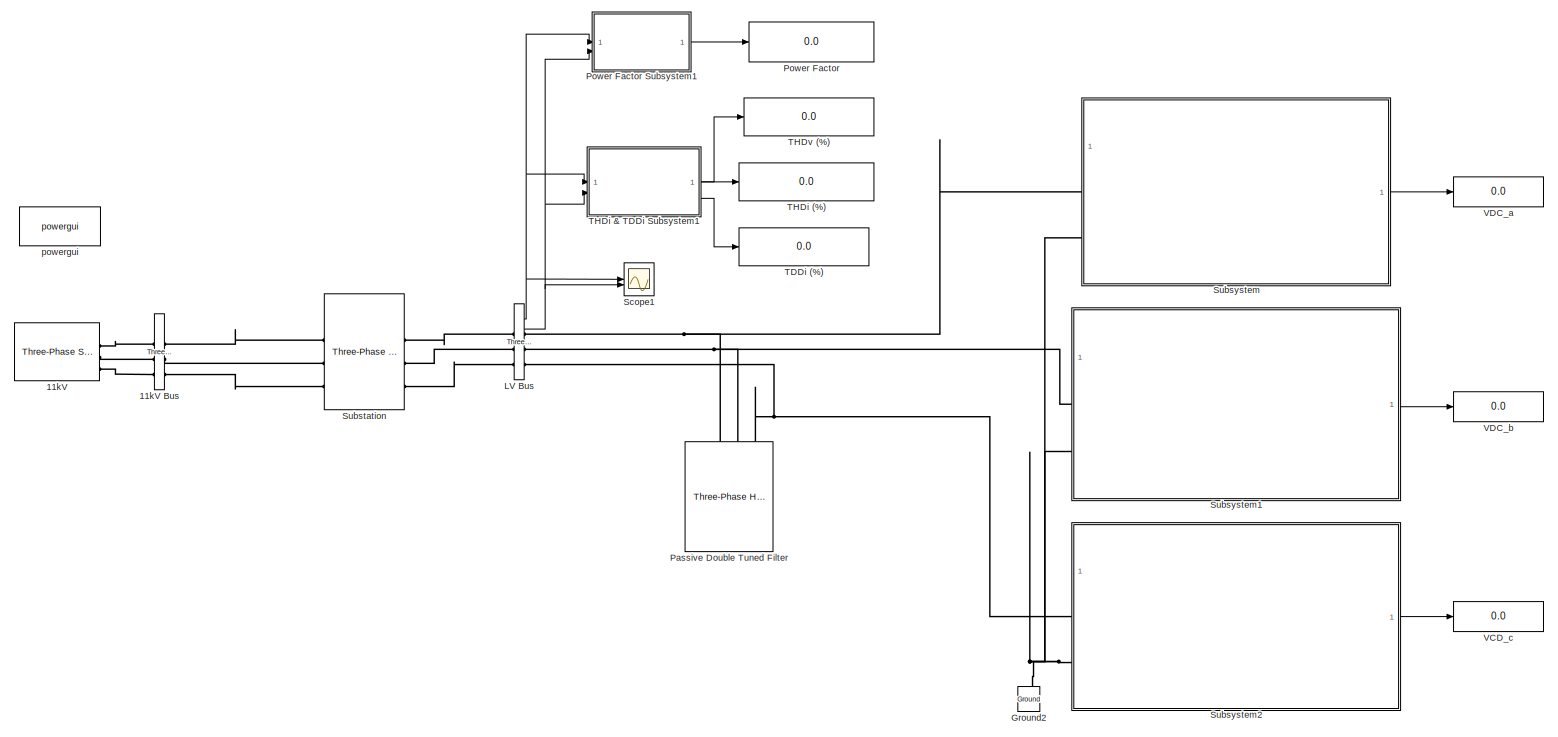
[diagram: root canvas - part 1/1, most of the canvas]
MODEL slx_6e7090bfe4f5
KIND model
CONFIG AbsTol = auto
CONFIG EnableMultiTasking = off
CONFIG FixedStep = auto
CONFIG MaxStep = auto
CONFIG MinStep = auto
CONFIG RelTol = 1e-3
CONFIG SampleTimeConstraint = Unconstrained
CONFIG SolverName = ode23tb
CONFIG StartTime = 0.0
CONFIG StopTime = 1.0
BLOCK [Reference] 11kV  REF=spsThreePhaseSourceLib/Three-Phase Source
  LibrarySourceBlock = sps_lib/Sources/Three-Phase Source
  SourceBlock = spsThreePhaseSourceLib/Three-Phase Source
  SourceType = Three-Phase Source
BLOCK [Reference] 11kV Bus  REF=spsThreePhaseVIMeasurementLib/Three-Phase
V-I Measurement
  LibrarySourceBlock = sps_lib/Sensors and Measurements/Three-Phase\nV-I Measurement
  SourceBlock = spsThreePhaseVIMeasurementLib/Three-Phase\nV-I Measurement
  SourceType = Three-Phase VI Measurement
BLOCK [Reference] Ground2  REF=spsGroundLib/Ground
  LibrarySourceBlock = sps_lib/Utilities/Ground
  NameLocation = right
  SourceBlock = spsGroundLib/Ground
  SourceType = Ground
BLOCK [Reference] LV Bus  REF=spsThreePhaseVIMeasurementLib/Three-Phase
V-I Measurement
  LibrarySourceBlock = sps_lib/Sensors and Measurements/Three-Phase\nV-I Measurement
  SourceBlock = spsThreePhaseVIMeasurementLib/Three-Phase\nV-I Measurement
  SourceType = Three-Phase VI Measurement
BLOCK [Reference] Passive Double Tuned Filter  REF=spsThreePhaseHarmonicFilterLib/Three-Phase
Harmonic Filter
  AttributesFormatString = \n
  LibrarySourceBlock = sps_lib/Passives/Three-Phase\nHarmonic Filter
  SourceBlock = spsThreePhaseHarmonicFilterLib/Three-Phase\nHarmonic Filter
  SourceType = Three-Phase Harmonic Filter
BLOCK [Display] Power Factor
  Decimation = 1
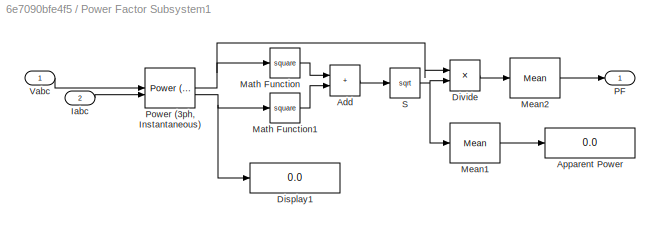
BLOCK [SubSystem] Power Factor Subsystem1
BLOCK [Sum] Power Factor Subsystem1/Add
  IconShape = rectangular
BLOCK [Display] Power Factor Subsystem1/Apparent Power
  Decimation = 1
BLOCK [Display] Power Factor Subsystem1/Display1
  Decimation = 1
BLOCK [Product] Power Factor Subsystem1/Divide
  Inputs = */
BLOCK [Inport] Power Factor Subsystem1/Iabc
  Port = 2
BLOCK [Math] Power Factor Subsystem1/Math Function
  Operator = square
BLOCK [Math] Power Factor Subsystem1/Math Function1
  Operator = square
BLOCK [Reference] Power Factor Subsystem1/Mean1  REF=spsMeanLib/Mean
  SourceBlock = spsMeanLib/Mean
  SourceType = Mean
BLOCK [Reference] Power Factor Subsystem1/Mean2  REF=spsMeanLib/Mean
  SourceBlock = spsMeanLib/Mean
  SourceType = Mean
BLOCK [Outport] Power Factor Subsystem1/PF
BLOCK [Reference] Power Factor Subsystem1/Power (3ph, Instantaneous)  REF=spsPower3phInstantaneousLib/Power
(3ph, Instantaneous)
  SourceBlock = spsPower3phInstantaneousLib/Power\n(3ph, Instantaneous)
  SourceType = Power (3ph, Instantaneous)
BLOCK [Sqrt] Power Factor Subsystem1/S
BLOCK [Inport] Power Factor Subsystem1/Vabc
BLOCK [Scope] Scope1
  Floating = off
  NumInputPorts = 2
  ScopeSpecificationString = Simulink.scopes.TimeScopeBlockCfg('CurrentConfiguration', extmgr.ConfigurationSet(extmgr.Configuration('Core','General UI',true),extmgr.Configuration('Core','Source UI',true),extmgr.Configuration('Sources','WiredSimulink',true,'DataLogging',true,'DataLoggingSaveFormat','StructureWithTime','DataLoggingVariableName','ScopeData1'),extmgr.Configuration('Visuals','Time Domain',true,'SerializedDisplays'...<+2192ch>
BLOCK [Reference] Substation  REF=spsThreePhaseTransformerTwoWindingsLib/Three-Phase
Transformer
(Two Windings)
  LibrarySourceBlock = sps_lib/Power Grid Elements/Three-Phase\nTransformer\n(Two Windings)
  SourceBlock = spsThreePhaseTransformerTwoWindingsLib/Three-Phase\nTransformer\n(Two Windings)
  SourceType = Three-Phase Transformer (Two Windings)
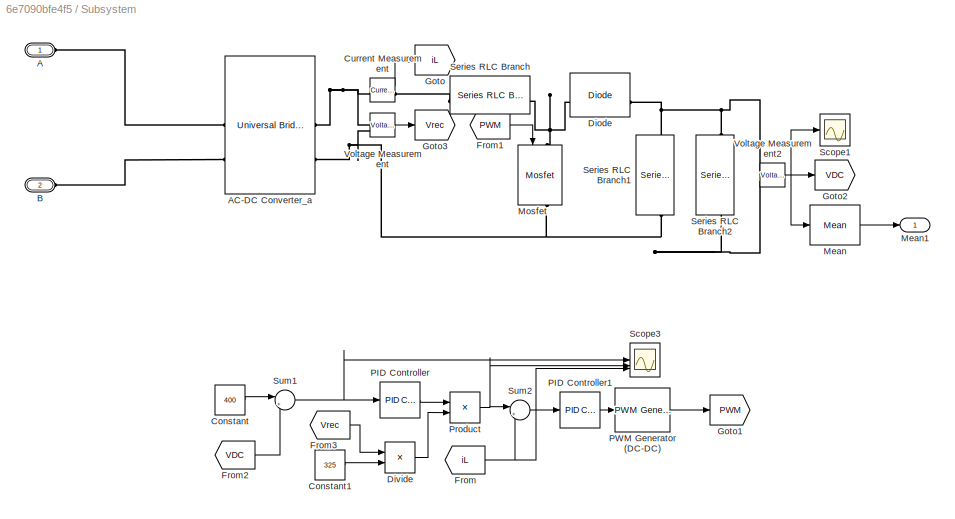
BLOCK [SubSystem] Subsystem
BLOCK [PMIOPort] Subsystem/A
  Side = Left
BLOCK [Reference] Subsystem/AC-DC Converter_a  REF=spsUniversalBridgeLib/Universal Bridge
  SourceBlock = spsUniversalBridgeLib/Universal Bridge
  SourceType = Universal Bridge
BLOCK [PMIOPort] Subsystem/B
  Port = 2
  Side = Left
BLOCK [Constant] Subsystem/Constant
  Value = 400
BLOCK [Constant] Subsystem/Constant1
  Value = 325
BLOCK [Reference] Subsystem/Current Measurement  REF=spsCurrentMeasurementLib/Current Measurement
  SourceBlock = spsCurrentMeasurementLib/Current Measurement
  SourceType = Current Measurement
  UserDataPersistent = on
BLOCK [Reference] Subsystem/Diode  REF=spsDiodeLib/Diode
  SourceBlock = spsDiodeLib/Diode
  SourceType = Diode
BLOCK [Product] Subsystem/Divide
  Inputs = */
BLOCK [From] Subsystem/From
  GotoTag = iL
BLOCK [From] Subsystem/From1
  GotoTag = PWM
BLOCK [From] Subsystem/From2
  GotoTag = VDC
BLOCK [From] Subsystem/From3
  GotoTag = Vrec
BLOCK [Goto] Subsystem/Goto
  GotoTag = iL
BLOCK [Goto] Subsystem/Goto1
  GotoTag = PWM
BLOCK [Goto] Subsystem/Goto2
  GotoTag = VDC
BLOCK [Goto] Subsystem/Goto3
  GotoTag = Vrec
BLOCK [Reference] Subsystem/Mean  REF=spsMeanLib/Mean
  SourceBlock = spsMeanLib/Mean
  SourceType = Mean
BLOCK [Outport] Subsystem/Mean1
BLOCK [Reference] Subsystem/Mosfet  REF=spsMosfetLib/Mosfet
  NameLocation = left
  SourceBlock = spsMosfetLib/Mosfet
  SourceType = Mosfet
BLOCK [Reference] Subsystem/PID Controller  REF=slpidlib/PID Controller
  SourceBlock = slpidlib/PID Controller
  SourceType = PID 1dof
BLOCK [Reference] Subsystem/PID Controller1  REF=slpidlib/PID Controller
  SourceBlock = slpidlib/PID Controller
  SourceType = PID 1dof
BLOCK [Reference] Subsystem/PWM Generator (DC-DC)  REF=spsPWMGeneratorDCDCLib/PWM Generator
(DC-DC)
  SourceBlock = spsPWMGeneratorDCDCLib/PWM Generator\n(DC-DC)
  SourceType = PWM Generator (DC-DC)
BLOCK [Product] Subsystem/Product
BLOCK [Scope] Subsystem/Scope1
  Floating = off
  NumInputPorts = 1
  ScopeSpecificationString = Simulink.scopes.TimeScopeBlockCfg('CurrentConfiguration', extmgr.ConfigurationSet(extmgr.Configuration('Core','General UI',true),extmgr.Configuration('Core','Source UI',true),extmgr.Configuration('Sources','WiredSimulink',true,'DataLoggingVariableName','ScopeData1'),extmgr.Configuration('Visuals','Time Domain',true,'SerializedDisplays',{struct('MinYLimReal','-118.78055','MaxYLimReal','1069.02497',...<+1444ch>  <repeated x3 — deduplicated; at blocks: Scope1, Scope 2, Scope 3>
BLOCK [Scope] Subsystem/Scope3
  Floating = off
  NumInputPorts = 3
  ScopeSpecificationString = Simulink.scopes.TimeScopeBlockCfg('CurrentConfiguration', extmgr.ConfigurationSet(extmgr.Configuration('Core','General UI',true),extmgr.Configuration('Core','Source UI',true),extmgr.Configuration('Sources','WiredSimulink',true,'DataLoggingVariableName','ScopeData3'),extmgr.Configuration('Visuals','Time Domain',true,'SerializedDisplays',{struct('MinYLimReal','-209.39497','MaxYLimReal','467.71055','...<+2793ch>
BLOCK [Reference] Subsystem/Series RLC Branch  REF=spsSeriesRLCBranchLib/Series RLC Branch
  SourceBlock = spsSeriesRLCBranchLib/Series RLC Branch
  SourceType = Series RLC Branch
BLOCK [Reference] Subsystem/Series RLC Branch1  REF=spsSeriesRLCBranchLib/Series RLC Branch
  NameLocation = left
  SourceBlock = spsSeriesRLCBranchLib/Series RLC Branch
  SourceType = Series RLC Branch
BLOCK [Reference] Subsystem/Series RLC Branch2  REF=spsSeriesRLCBranchLib/Series RLC Branch
  NameLocation = left
  SourceBlock = spsSeriesRLCBranchLib/Series RLC Branch
  SourceType = Series RLC Branch
BLOCK [Sum] Subsystem/Sum1
  Inputs = |+-
BLOCK [Sum] Subsystem/Sum2
  Inputs = |+-
BLOCK [Reference] Subsystem/Voltage Measurement  REF=spsVoltageMeasurementLib/Voltage Measurement
  SourceBlock = spsVoltageMeasurementLib/Voltage Measurement
  SourceType = Voltage Measurement
  UserDataPersistent = on
BLOCK [Reference] Subsystem/Voltage Measurement2  REF=spsVoltageMeasurementLib/Voltage Measurement
  SourceBlock = spsVoltageMeasurementLib/Voltage Measurement
  SourceType = Voltage Measurement
  UserDataPersistent = on
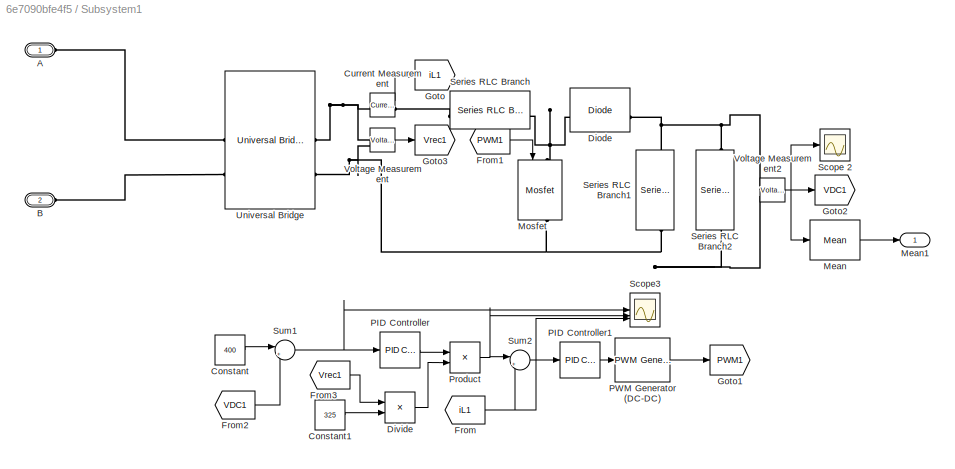
BLOCK [SubSystem] Subsystem1
BLOCK [PMIOPort] Subsystem1/A
  Side = Left
BLOCK [PMIOPort] Subsystem1/B
  Port = 2
  Side = Left
BLOCK [Constant] Subsystem1/Constant
  Value = 400
BLOCK [Constant] Subsystem1/Constant1
  Value = 325
BLOCK [Reference] Subsystem1/Current Measurement  REF=spsCurrentMeasurementLib/Current Measurement
  SourceBlock = spsCurrentMeasurementLib/Current Measurement
  SourceType = Current Measurement
  UserDataPersistent = on
BLOCK [Reference] Subsystem1/Diode  REF=spsDiodeLib/Diode
  SourceBlock = spsDiodeLib/Diode
  SourceType = Diode
BLOCK [Product] Subsystem1/Divide
  Inputs = */
BLOCK [From] Subsystem1/From
  GotoTag = iL1
BLOCK [From] Subsystem1/From1
  GotoTag = PWM1
BLOCK [From] Subsystem1/From2
  GotoTag = VDC1
BLOCK [From] Subsystem1/From3
  GotoTag = Vrec1
BLOCK [Goto] Subsystem1/Goto
  GotoTag = iL1
BLOCK [Goto] Subsystem1/Goto1
  GotoTag = PWM1
BLOCK [Goto] Subsystem1/Goto2
  GotoTag = VDC1
BLOCK [Goto] Subsystem1/Goto3
  GotoTag = Vrec1
BLOCK [Reference] Subsystem1/Mean  REF=spsMeanLib/Mean
  SourceBlock = spsMeanLib/Mean
  SourceType = Mean
BLOCK [Outport] Subsystem1/Mean1
BLOCK [Reference] Subsystem1/Mosfet  REF=spsMosfetLib/Mosfet
  NameLocation = left
  SourceBlock = spsMosfetLib/Mosfet
  SourceType = Mosfet
BLOCK [Reference] Subsystem1/PID Controller  REF=slpidlib/PID Controller
  SourceBlock = slpidlib/PID Controller
  SourceType = PID 1dof
BLOCK [Reference] Subsystem1/PID Controller1  REF=slpidlib/PID Controller
  SourceBlock = slpidlib/PID Controller
  SourceType = PID 1dof
BLOCK [Reference] Subsystem1/PWM Generator (DC-DC)  REF=spsPWMGeneratorDCDCLib/PWM Generator
(DC-DC)
  SourceBlock = spsPWMGeneratorDCDCLib/PWM Generator\n(DC-DC)
  SourceType = PWM Generator (DC-DC)
BLOCK [Product] Subsystem1/Product
BLOCK [Scope] Subsystem1/Scope 2
  Floating = off
  NumInputPorts = 1
BLOCK [Scope] Subsystem1/Scope3
  Floating = off
  NumInputPorts = 3
  ScopeSpecificationString = Simulink.scopes.TimeScopeBlockCfg('CurrentConfiguration', extmgr.ConfigurationSet(extmgr.Configuration('Core','General UI',true),extmgr.Configuration('Core','Source UI',true),extmgr.Configuration('Sources','WiredSimulink',true,'DataLoggingVariableName','ScopeData3'),extmgr.Configuration('Visuals','Time Domain',true,'SerializedDisplays',{struct('MinYLimReal','-209.39497','MaxYLimReal','467.71055','...<+2767ch>
BLOCK [Reference] Subsystem1/Series RLC Branch  REF=spsSeriesRLCBranchLib/Series RLC Branch
  SourceBlock = spsSeriesRLCBranchLib/Series RLC Branch
  SourceType = Series RLC Branch
BLOCK [Reference] Subsystem1/Series RLC Branch1  REF=spsSeriesRLCBranchLib/Series RLC Branch
  NameLocation = left
  SourceBlock = spsSeriesRLCBranchLib/Series RLC Branch
  SourceType = Series RLC Branch
BLOCK [Reference] Subsystem1/Series RLC Branch2  REF=spsSeriesRLCBranchLib/Series RLC Branch
  NameLocation = left
  SourceBlock = spsSeriesRLCBranchLib/Series RLC Branch
  SourceType = Series RLC Branch
BLOCK [Sum] Subsystem1/Sum1
  Inputs = |+-
BLOCK [Sum] Subsystem1/Sum2
  Inputs = |+-
BLOCK [Reference] Subsystem1/Universal Bridge  REF=spsUniversalBridgeLib/Universal Bridge
  SourceBlock = spsUniversalBridgeLib/Universal Bridge
  SourceType = Universal Bridge
BLOCK [Reference] Subsystem1/Voltage Measurement  REF=spsVoltageMeasurementLib/Voltage Measurement
  SourceBlock = spsVoltageMeasurementLib/Voltage Measurement
  SourceType = Voltage Measurement
  UserDataPersistent = on
BLOCK [Reference] Subsystem1/Voltage Measurement2  REF=spsVoltageMeasurementLib/Voltage Measurement
  SourceBlock = spsVoltageMeasurementLib/Voltage Measurement
  SourceType = Voltage Measurement
  UserDataPersistent = on
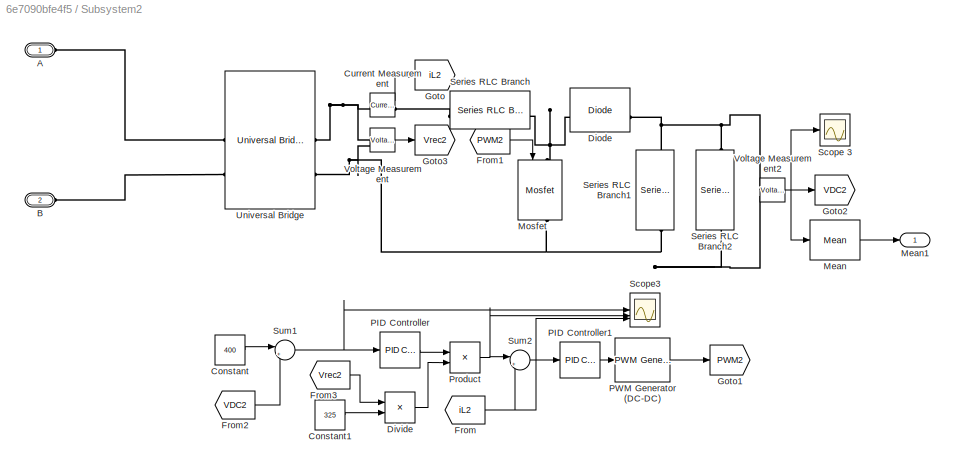
BLOCK [SubSystem] Subsystem2
BLOCK [PMIOPort] Subsystem2/A
  Side = Left
BLOCK [PMIOPort] Subsystem2/B
  Port = 2
  Side = Left
BLOCK [Constant] Subsystem2/Constant
  Value = 400
BLOCK [Constant] Subsystem2/Constant1
  Value = 325
BLOCK [Reference] Subsystem2/Current Measurement  REF=spsCurrentMeasurementLib/Current Measurement
  SourceBlock = spsCurrentMeasurementLib/Current Measurement
  SourceType = Current Measurement
  UserDataPersistent = on
BLOCK [Reference] Subsystem2/Diode  REF=spsDiodeLib/Diode
  SourceBlock = spsDiodeLib/Diode
  SourceType = Diode
BLOCK [Product] Subsystem2/Divide
  Inputs = */
BLOCK [From] Subsystem2/From
  GotoTag = iL2
BLOCK [From] Subsystem2/From1
  GotoTag = PWM2
BLOCK [From] Subsystem2/From2
  GotoTag = VDC2
BLOCK [From] Subsystem2/From3
  GotoTag = Vrec2
BLOCK [Goto] Subsystem2/Goto
  GotoTag = iL2
BLOCK [Goto] Subsystem2/Goto1
  GotoTag = PWM2
BLOCK [Goto] Subsystem2/Goto2
  GotoTag = VDC2
BLOCK [Goto] Subsystem2/Goto3
  GotoTag = Vrec2
BLOCK [Reference] Subsystem2/Mean  REF=spsMeanLib/Mean
  SourceBlock = spsMeanLib/Mean
  SourceType = Mean
BLOCK [Outport] Subsystem2/Mean1
BLOCK [Reference] Subsystem2/Mosfet  REF=spsMosfetLib/Mosfet
  NameLocation = left
  SourceBlock = spsMosfetLib/Mosfet
  SourceType = Mosfet
BLOCK [Reference] Subsystem2/PID Controller  REF=slpidlib/PID Controller
  SourceBlock = slpidlib/PID Controller
  SourceType = PID 1dof
BLOCK [Reference] Subsystem2/PID Controller1  REF=slpidlib/PID Controller
  SourceBlock = slpidlib/PID Controller
  SourceType = PID 1dof
BLOCK [Reference] Subsystem2/PWM Generator (DC-DC)  REF=spsPWMGeneratorDCDCLib/PWM Generator
(DC-DC)
  SourceBlock = spsPWMGeneratorDCDCLib/PWM Generator\n(DC-DC)
  SourceType = PWM Generator (DC-DC)
BLOCK [Product] Subsystem2/Product
BLOCK [Scope] Subsystem2/Scope 3 
  Floating = off
  NumInputPorts = 1
BLOCK [Scope] Subsystem2/Scope3
  Floating = off
  NumInputPorts = 3
  ScopeSpecificationString = Simulink.scopes.TimeScopeBlockCfg('CurrentConfiguration', extmgr.ConfigurationSet(extmgr.Configuration('Core','General UI',true),extmgr.Configuration('Core','Source UI',true),extmgr.Configuration('Sources','WiredSimulink',true,'DataLoggingVariableName','ScopeData3'),extmgr.Configuration('Visuals','Time Domain',true,'SerializedDisplays',{struct('MinYLimReal','-209.39497','MaxYLimReal','467.71055','...<+2767ch>
BLOCK [Reference] Subsystem2/Series RLC Branch  REF=spsSeriesRLCBranchLib/Series RLC Branch
  SourceBlock = spsSeriesRLCBranchLib/Series RLC Branch
  SourceType = Series RLC Branch
BLOCK [Reference] Subsystem2/Series RLC Branch1  REF=spsSeriesRLCBranchLib/Series RLC Branch
  NameLocation = left
  SourceBlock = spsSeriesRLCBranchLib/Series RLC Branch
  SourceType = Series RLC Branch
BLOCK [Reference] Subsystem2/Series RLC Branch2  REF=spsSeriesRLCBranchLib/Series RLC Branch
  NameLocation = left
  SourceBlock = spsSeriesRLCBranchLib/Series RLC Branch
  SourceType = Series RLC Branch
BLOCK [Sum] Subsystem2/Sum1
  Inputs = |+-
BLOCK [Sum] Subsystem2/Sum2
  Inputs = |+-
BLOCK [Reference] Subsystem2/Universal Bridge  REF=spsUniversalBridgeLib/Universal Bridge
  SourceBlock = spsUniversalBridgeLib/Universal Bridge
  SourceType = Universal Bridge
BLOCK [Reference] Subsystem2/Voltage Measurement  REF=spsVoltageMeasurementLib/Voltage Measurement
  SourceBlock = spsVoltageMeasurementLib/Voltage Measurement
  SourceType = Voltage Measurement
  UserDataPersistent = on
BLOCK [Reference] Subsystem2/Voltage Measurement2  REF=spsVoltageMeasurementLib/Voltage Measurement
  SourceBlock = spsVoltageMeasurementLib/Voltage Measurement
  SourceType = Voltage Measurement
  UserDataPersistent = on
BLOCK [Display] TDDi (%)
  Decimation = 1
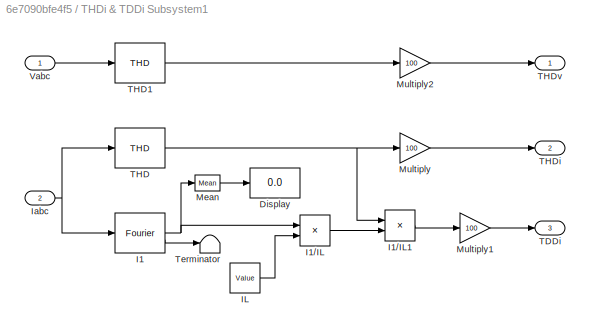
BLOCK [SubSystem] THDi & TDDi Subsystem1
BLOCK [Display] THDi & TDDi Subsystem1/Display
  Decimation = 1
BLOCK [Reference] THDi & TDDi Subsystem1/I1  REF=spsFourierLib/Fourier
  SourceBlock = spsFourierLib/Fourier
  SourceType = Fourier
BLOCK [Product] THDi & TDDi Subsystem1/I1//IL
  Inputs = */
BLOCK [Product] THDi & TDDi Subsystem1/I1//IL1
  Inputs = **
BLOCK [Constant] THDi & TDDi Subsystem1/IL
  Value = Value
BLOCK [Inport] THDi & TDDi Subsystem1/Iabc
  Port = 2
BLOCK [Reference] THDi & TDDi Subsystem1/Mean  REF=spsMeanLib/Mean
  SourceBlock = spsMeanLib/Mean
  SourceType = Mean
BLOCK [Gain] THDi & TDDi Subsystem1/Multiply
  Gain = 100
BLOCK [Gain] THDi & TDDi Subsystem1/Multiply1
  Gain = 100
BLOCK [Gain] THDi & TDDi Subsystem1/Multiply2
  Gain = 100
BLOCK [Outport] THDi & TDDi Subsystem1/TDDi
  Port = 3
BLOCK [Reference] THDi & TDDi Subsystem1/THD  REF=spsTHDLib/THD
  SourceBlock = spsTHDLib/THD
  SourceType = THD
BLOCK [Reference] THDi & TDDi Subsystem1/THD1  REF=spsTHDLib/THD
  SourceBlock = spsTHDLib/THD
  SourceType = THD
BLOCK [Outport] THDi & TDDi Subsystem1/THDi
  Port = 2
BLOCK [Outport] THDi & TDDi Subsystem1/THDv
BLOCK [Terminator] THDi & TDDi Subsystem1/Terminator
BLOCK [Inport] THDi & TDDi Subsystem1/Vabc
BLOCK [Display] THDi (%)
  Decimation = 1
BLOCK [Display] THDv (%)
  Decimation = 1
BLOCK [Display] VCD_c
  Decimation = 1
BLOCK [Display] VDC_a
  Decimation = 1
BLOCK [Display] VDC_b
  Decimation = 1
BLOCK [Reference] powergui  REF=spspowerguiLib/powergui
  Priority = 1
  SourceBlock = spspowerguiLib/powergui
  SourceType = PSB option menu block
NET LV Bus:1 -> Power Factor Subsystem1:1, Scope1:1, THDi & TDDi Subsystem1:1
NET LV Bus:2 -> Power Factor Subsystem1:2, Scope1:2, THDi & TDDi Subsystem1:2
LINE Power Factor Subsystem1/Add:1 -> Power Factor Subsystem1/S:1
LINE Power Factor Subsystem1/Divide:1 -> Power Factor Subsystem1/Mean2:1
LINE Power Factor Subsystem1/Iabc:1 -> Power Factor Subsystem1/Power (3ph, Instantaneous):2
LINE Power Factor Subsystem1/Math Function1:1 -> Power Factor Subsystem1/Add:2
LINE Power Factor Subsystem1/Math Function:1 -> Power Factor Subsystem1/Add:1
LINE Power Factor Subsystem1/Mean1:1 -> Power Factor Subsystem1/Apparent Power:1
LINE Power Factor Subsystem1/Mean2:1 -> Power Factor Subsystem1/PF:1
NET Power Factor Subsystem1/Power (3ph, Instantaneous):1 -> Power Factor Subsystem1/Divide:1, Power Factor Subsystem1/Math Function:1
NET Power Factor Subsystem1/Power (3ph, Instantaneous):2 -> Power Factor Subsystem1/Display1:1, Power Factor Subsystem1/Math Function1:1
NET Power Factor Subsystem1/S:1 -> Power Factor Subsystem1/Divide:2, Power Factor Subsystem1/Mean1:1
LINE Power Factor Subsystem1/Vabc:1 -> Power Factor Subsystem1/Power (3ph, Instantaneous):1
LINE Power Factor Subsystem1:1 -> Power Factor:1
LINE Subsystem/Constant1:1 -> Subsystem/Divide:2
LINE Subsystem/Constant:1 -> Subsystem/Sum1:1
LINE Subsystem/Current Measurement:1 -> Subsystem/Goto:1
LINE Subsystem/Divide:1 -> Subsystem/Product:2
LINE Subsystem/From1:1 -> Subsystem/Mosfet:1
LINE Subsystem/From2:1 -> Subsystem/Sum1:2
LINE Subsystem/From3:1 -> Subsystem/Divide:1
NET Subsystem/From:1 -> Subsystem/Scope3:3, Subsystem/Sum2:2
LINE Subsystem/Mean:1 -> Subsystem/Mean1:1
LINE Subsystem/PID Controller1:1 -> Subsystem/PWM Generator (DC-DC):1
LINE Subsystem/PID Controller:1 -> Subsystem/Product:1
LINE Subsystem/PWM Generator (DC-DC):1 -> Subsystem/Goto1:1
NET Subsystem/Product:1 -> Subsystem/Scope3:2, Subsystem/Sum2:1
NET Subsystem/Sum1:1 -> Subsystem/PID Controller:1, Subsystem/Scope3:1
LINE Subsystem/Sum2:1 -> Subsystem/PID Controller1:1
NET Subsystem/Voltage Measurement2:1 -> Subsystem/Goto2:1, Subsystem/Mean:1, Subsystem/Scope1:1
LINE Subsystem/Voltage Measurement:1 -> Subsystem/Goto3:1
LINE Subsystem1/Constant1:1 -> Subsystem1/Divide:2
LINE Subsystem1/Constant:1 -> Subsystem1/Sum1:1
LINE Subsystem1/Current Measurement:1 -> Subsystem1/Goto:1
LINE Subsystem1/Divide:1 -> Subsystem1/Product:2
LINE Subsystem1/From1:1 -> Subsystem1/Mosfet:1
LINE Subsystem1/From2:1 -> Subsystem1/Sum1:2
LINE Subsystem1/From3:1 -> Subsystem1/Divide:1
NET Subsystem1/From:1 -> Subsystem1/Scope3:3, Subsystem1/Sum2:2
LINE Subsystem1/Mean:1 -> Subsystem1/Mean1:1
LINE Subsystem1/PID Controller1:1 -> Subsystem1/PWM Generator (DC-DC):1
LINE Subsystem1/PID Controller:1 -> Subsystem1/Product:1
LINE Subsystem1/PWM Generator (DC-DC):1 -> Subsystem1/Goto1:1
NET Subsystem1/Product:1 -> Subsystem1/Scope3:2, Subsystem1/Sum2:1
NET Subsystem1/Sum1:1 -> Subsystem1/PID Controller:1, Subsystem1/Scope3:1
LINE Subsystem1/Sum2:1 -> Subsystem1/PID Controller1:1
NET Subsystem1/Voltage Measurement2:1 -> Subsystem1/Goto2:1, Subsystem1/Mean:1, Subsystem1/Scope 2:1
LINE Subsystem1/Voltage Measurement:1 -> Subsystem1/Goto3:1
LINE Subsystem1:1 -> VDC_b:1
LINE Subsystem2/Constant1:1 -> Subsystem2/Divide:2
LINE Subsystem2/Constant:1 -> Subsystem2/Sum1:1
LINE Subsystem2/Current Measurement:1 -> Subsystem2/Goto:1
LINE Subsystem2/Divide:1 -> Subsystem2/Product:2
LINE Subsystem2/From1:1 -> Subsystem2/Mosfet:1
LINE Subsystem2/From2:1 -> Subsystem2/Sum1:2
LINE Subsystem2/From3:1 -> Subsystem2/Divide:1
NET Subsystem2/From:1 -> Subsystem2/Scope3:3, Subsystem2/Sum2:2
LINE Subsystem2/Mean:1 -> Subsystem2/Mean1:1
LINE Subsystem2/PID Controller1:1 -> Subsystem2/PWM Generator (DC-DC):1
LINE Subsystem2/PID Controller:1 -> Subsystem2/Product:1
LINE Subsystem2/PWM Generator (DC-DC):1 -> Subsystem2/Goto1:1
NET Subsystem2/Product:1 -> Subsystem2/Scope3:2, Subsystem2/Sum2:1
NET Subsystem2/Sum1:1 -> Subsystem2/PID Controller:1, Subsystem2/Scope3:1
LINE Subsystem2/Sum2:1 -> Subsystem2/PID Controller1:1
NET Subsystem2/Voltage Measurement2:1 -> Subsystem2/Goto2:1, Subsystem2/Mean:1, Subsystem2/Scope 3 :1
LINE Subsystem2/Voltage Measurement:1 -> Subsystem2/Goto3:1
LINE Subsystem2:1 -> VCD_c:1
LINE Subsystem:1 -> VDC_a:1
LINE THDi & TDDi Subsystem1/I1//IL1:1 -> THDi & TDDi Subsystem1/Multiply1:1
LINE THDi & TDDi Subsystem1/I1//IL:1 -> THDi & TDDi Subsystem1/I1//IL1:2
NET THDi & TDDi Subsystem1/I1:1 -> THDi & TDDi Subsystem1/I1//IL:1, THDi & TDDi Subsystem1/Mean:1
LINE THDi & TDDi Subsystem1/I1:2 -> THDi & TDDi Subsystem1/Terminator:1
LINE THDi & TDDi Subsystem1/IL:1 -> THDi & TDDi Subsystem1/I1//IL:2
NET THDi & TDDi Subsystem1/Iabc:1 -> THDi & TDDi Subsystem1/I1:1, THDi & TDDi Subsystem1/THD:1
LINE THDi & TDDi Subsystem1/Mean:1 -> THDi & TDDi Subsystem1/Display:1
LINE THDi & TDDi Subsystem1/Multiply1:1 -> THDi & TDDi Subsystem1/TDDi:1
LINE THDi & TDDi Subsystem1/Multiply2:1 -> THDi & TDDi Subsystem1/THDv:1
LINE THDi & TDDi Subsystem1/Multiply:1 -> THDi & TDDi Subsystem1/THDi:1
LINE THDi & TDDi Subsystem1/THD1:1 -> THDi & TDDi Subsystem1/Multiply2:1
NET THDi & TDDi Subsystem1/THD:1 -> THDi & TDDi Subsystem1/I1//IL1:1, THDi & TDDi Subsystem1/Multiply:1
LINE THDi & TDDi Subsystem1/Vabc:1 -> THDi & TDDi Subsystem1/THD1:1
LINE THDi & TDDi Subsystem1:1 -> THDv (%):1
LINE THDi & TDDi Subsystem1:2 -> THDi (%):1
LINE THDi & TDDi Subsystem1:3 -> TDDi (%):1
PLINE 11kV Bus:LConn1 -- 11kV:RConn1
PLINE 11kV Bus:LConn2 -- 11kV:RConn2
PLINE 11kV Bus:LConn3 -- 11kV:RConn3
PLINE 11kV Bus:RConn1 -- Substation:LConn1
PLINE 11kV Bus:RConn2 -- Substation:LConn2
PLINE 11kV Bus:RConn3 -- Substation:LConn3
PNET net1: Ground2:LConn1 -- Subsystem1:LConn2 -- Subsystem2:LConn2 -- Subsystem:LConn2
PLINE LV Bus:LConn1 -- Substation:RConn1
PLINE LV Bus:LConn2 -- Substation:RConn2
PLINE LV Bus:LConn3 -- Substation:RConn3
PNET net2: LV Bus:RConn1 -- Passive Double Tuned Filter:LConn1 -- Subsystem:LConn1
PNET net3: LV Bus:RConn2 -- Passive Double Tuned Filter:LConn2 -- Subsystem1:LConn1
PNET net4: LV Bus:RConn3 -- Passive Double Tuned Filter:LConn3 -- Subsystem2:LConn1
PLINE Subsystem/A:RConn1 -- Subsystem/AC-DC Converter_a:LConn1
PLINE Subsystem/AC-DC Converter_a:LConn2 -- Subsystem/B:RConn1
PNET net5: Subsystem/AC-DC Converter_a:RConn1 -- Subsystem/Current Measurement:LConn1 -- Subsystem/Voltage Measurement:LConn1
PNET net6: Subsystem/AC-DC Converter_a:RConn2 -- Subsystem/Mosfet:RConn1 -- Subsystem/Series RLC Branch1:RConn1 -- Subsystem/Series RLC Branch2:RConn1 -- Subsystem/Voltage Measurement2:LConn2 -- Subsystem/Voltage Measurement:LConn2
PLINE Subsystem/Current Measurement:RConn1 -- Subsystem/Series RLC Branch:LConn1
PNET net7: Subsystem/Diode:LConn1 -- Subsystem/Mosfet:LConn1 -- Subsystem/Series RLC Branch:RConn1
PNET net8: Subsystem/Diode:RConn1 -- Subsystem/Series RLC Branch1:LConn1 -- Subsystem/Series RLC Branch2:LConn1 -- Subsystem/Voltage Measurement2:LConn1
PLINE Subsystem1/A:RConn1 -- Subsystem1/Universal Bridge:LConn1
PLINE Subsystem1/B:RConn1 -- Subsystem1/Universal Bridge:LConn2
PNET net9: Subsystem1/Current Measurement:LConn1 -- Subsystem1/Universal Bridge:RConn1 -- Subsystem1/Voltage Measurement:LConn1
PLINE Subsystem1/Current Measurement:RConn1 -- Subsystem1/Series RLC Branch:LConn1
PNET net10: Subsystem1/Diode:LConn1 -- Subsystem1/Mosfet:LConn1 -- Subsystem1/Series RLC Branch:RConn1
PNET net11: Subsystem1/Diode:RConn1 -- Subsystem1/Series RLC Branch1:LConn1 -- Subsystem1/Series RLC Branch2:LConn1 -- Subsystem1/Voltage Measurement2:LConn1
PNET net12: Subsystem1/Mosfet:RConn1 -- Subsystem1/Series RLC Branch1:RConn1 -- Subsystem1/Series RLC Branch2:RConn1 -- Subsystem1/Universal Bridge:RConn2 -- Subsystem1/Voltage Measurement2:LConn2 -- Subsystem1/Voltage Measurement:LConn2
PLINE Subsystem2/A:RConn1 -- Subsystem2/Universal Bridge:LConn1
PLINE Subsystem2/B:RConn1 -- Subsystem2/Universal Bridge:LConn2
PNET net13: Subsystem2/Current Measurement:LConn1 -- Subsystem2/Universal Bridge:RConn1 -- Subsystem2/Voltage Measurement:LConn1
PLINE Subsystem2/Current Measurement:RConn1 -- Subsystem2/Series RLC Branch:LConn1
PNET net14: Subsystem2/Diode:LConn1 -- Subsystem2/Mosfet:LConn1 -- Subsystem2/Series RLC Branch:RConn1
PNET net15: Subsystem2/Diode:RConn1 -- Subsystem2/Series RLC Branch1:LConn1 -- Subsystem2/Series RLC Branch2:LConn1 -- Subsystem2/Voltage Measurement2:LConn1
PNET net16: Subsystem2/Mosfet:RConn1 -- Subsystem2/Series RLC Branch1:RConn1 -- Subsystem2/Series RLC Branch2:RConn1 -- Subsystem2/Universal Bridge:RConn2 -- Subsystem2/Voltage Measurement2:LConn2 -- Subsystem2/Voltage Measurement:LConn2
note: NET lines group one-source signal fan-out (src -> all destinations, sorted); 1:1 wires keep LINE; PNET lines group multi-terminal physical nets as a canonical sorted terminal list (undirected conserving connections); 2-terminal nets keep the pairwise PLINE form
